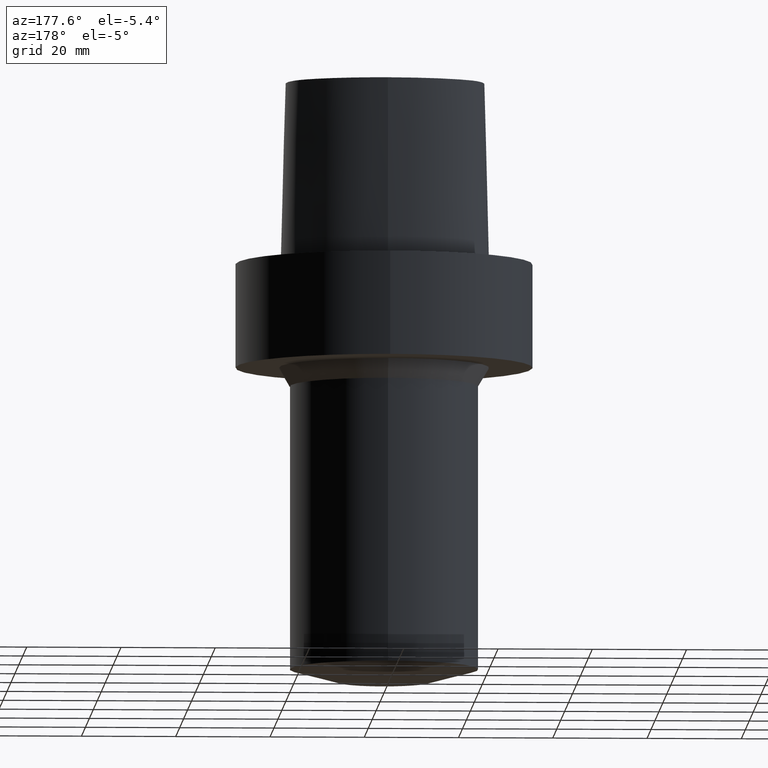
[diagram: clean part render]
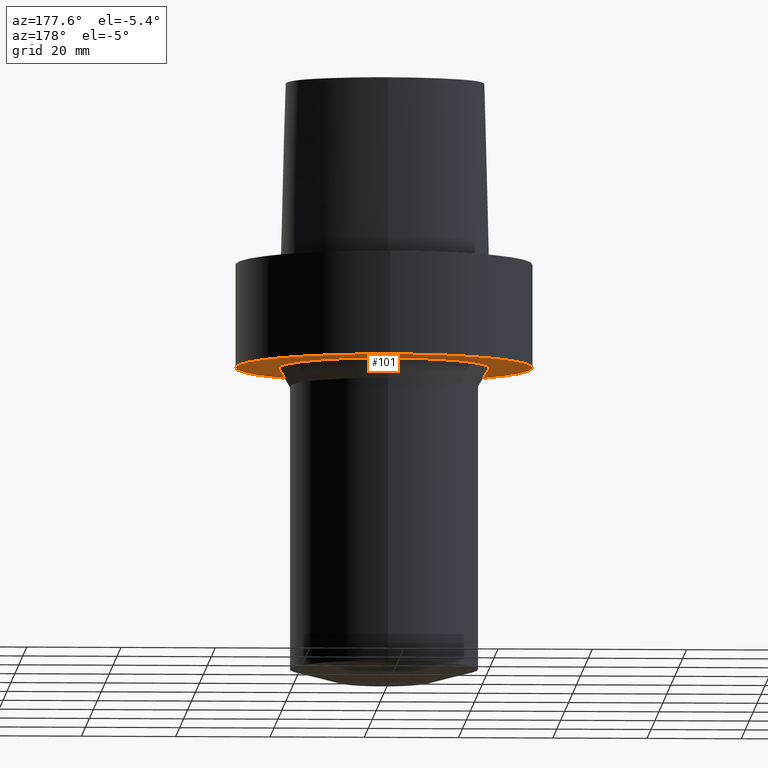
[diagram: same view with one face highlighted and labeled with its STEP entity id]
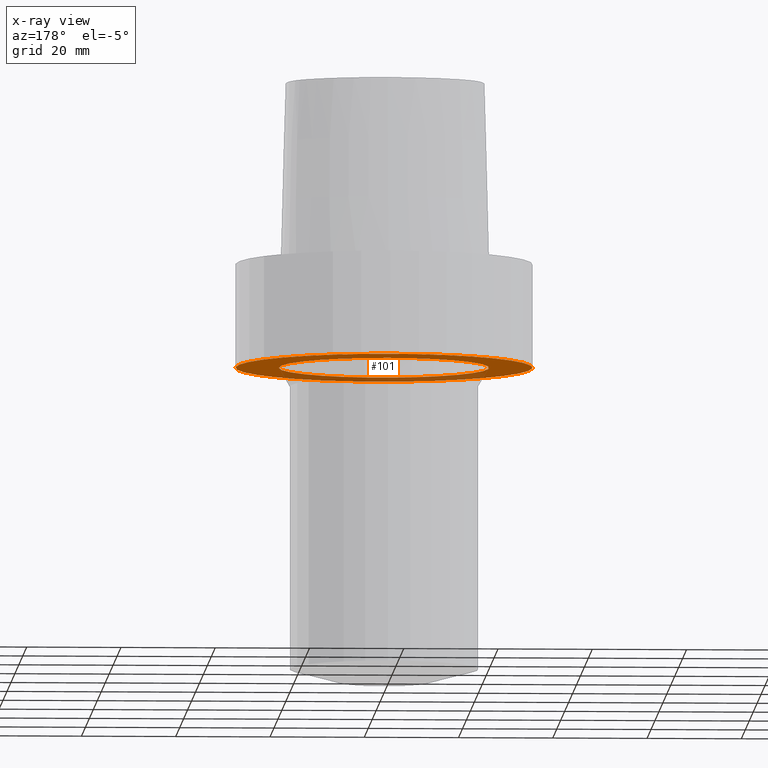
[diagram: x-ray of the same camera — body ghosted, the highlighted face saturated]
A machine part, auxiliary view. The second image highlights one B-rep face of the part: STEP entity #101.
The next image is the same camera in x-ray: the body ghosted, the highlighted face saturated — about 29% of this face is hidden behind the body in this view.
In plain terms, the highlighted planar face has unit normal (0, 0, -1).
Its self-contained STEP definition (entity closure, byte-faithful):
#75=EDGE_CURVE('Unnamed[1]',#167,#167,#168,.T.);
#96=EDGE_CURVE('Unnamed[1]',#195,#195,#196,.T.);
#101=ADVANCED_FACE('Unnamed[1]',(#202,#203),#204,.T.);
#167=VERTEX_POINT('',#360);
#168=CIRCLE('',#361,31.5);
#195=VERTEX_POINT('',#445);
#196=CIRCLE('',#446,22.3094010767605);
#202=FACE_BOUND('',#454,.T.);
#203=FACE_OUTER_BOUND('',#455,.T.);
#204=PLANE('',#456);
#360=CARTESIAN_POINT('',(1.34711147906209E-015,31.5,-22.0));
#361=AXIS2_PLACEMENT_3D('',#579,#580,#581);
#445=CARTESIAN_POINT('',(1.34711147906209E-015,22.3094010767605,-22.0));
#446=AXIS2_PLACEMENT_3D('',#607,#608,#609);
#454=EDGE_LOOP('',(#614));
#455=EDGE_LOOP('',(#615));
#456=AXIS2_PLACEMENT_3D('',#616,#617,#618);
#579=CARTESIAN_POINT('',(1.34711147906209E-015,2.69422295812418E-015,-22.0));
#580=DIRECTION('',(6.12323399573677E-017,1.22464679914735E-016,-1.0));
#581=DIRECTION('',(-1.23259516440783E-032,1.0,1.22464679914735E-016));
#607=CARTESIAN_POINT('',(1.34711147906209E-015,2.69422295812418E-015,-22.0));
#608=DIRECTION('',(6.12323399573677E-017,1.22464679914735E-016,-1.0));
#609=DIRECTION('',(-1.23259516440783E-032,1.0,1.22464679914735E-016));
#614=ORIENTED_EDGE('',*,*,#96,.F.);
#615=ORIENTED_EDGE('',*,*,#75,.T.);
#616=CARTESIAN_POINT('',(1.34711147906209E-015,26.9047005383802,-22.0));
#617=DIRECTION('',(6.12323399573677E-017,1.22464679914735E-016,-1.0));
#618=DIRECTION('',(-1.23259516440783E-032,1.0,1.22464679914735E-016));